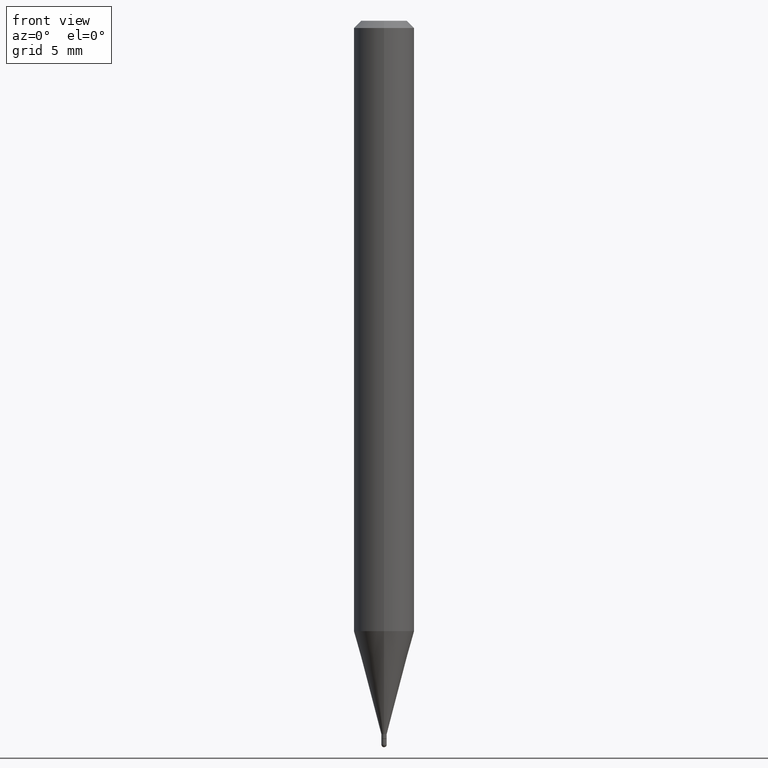
[diagram: clean part render]
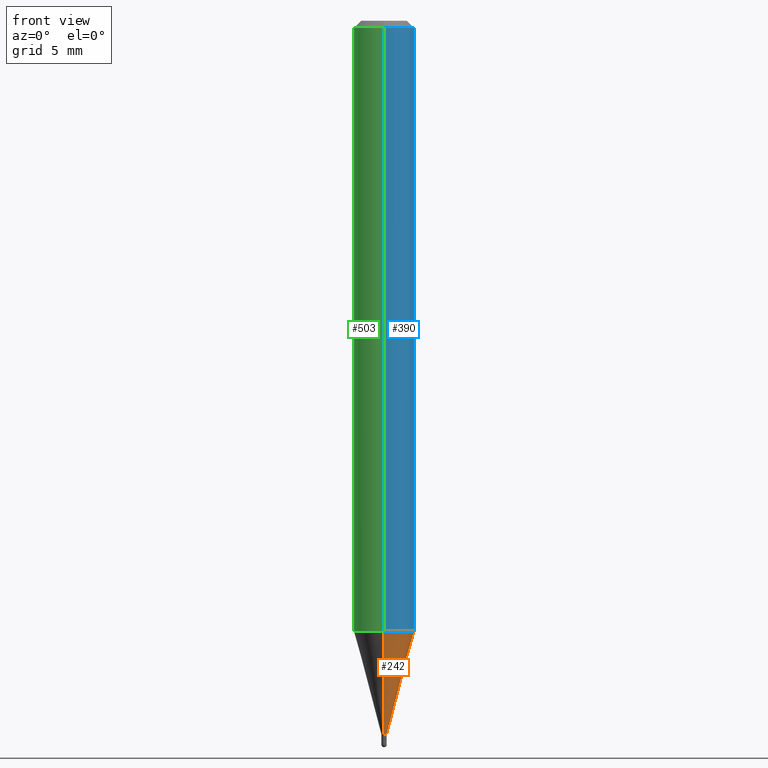
[diagram: same view with three faces highlighted in distinct colors, each labeled with its STEP entity id]
A machine part, front view with three faces highlighted in distinct colors.
Their STEP definitions:

[orange] entity #242 — the highlighted conical surface has half-angle 15 deg.
#4 = CARTESIAN_POINT ( 'NONE',  ( -4.364351673553608052E-16, -0.06250000000000439926, -1.260273103968574393 ) ) ;
#6 = VECTOR ( 'NONE', #164, 39.37007874015748143 ) ;
#18 = DIRECTION ( 'NONE',  ( -6.982962677686265922E-15, -1.000000000000000000, 0.000000000000000000 ) ) ;
#34 = VERTEX_POINT ( 'NONE', #400 ) ;
#53 = ORIENTED_EDGE ( 'NONE', *, *, #357, .T. ) ;
#56 = CARTESIAN_POINT ( 'NONE',  ( -3.840629472723789408E-17, -0.005500000000005065073, -1.473000000000000087 ) ) ;
#57 = AXIS2_PLACEMENT_3D ( 'NONE', #352, #268, #156 ) ;
#64 = EDGE_CURVE ( 'NONE', #433, #234, #138, .T. ) ;
#128 = EDGE_LOOP ( 'NONE', ( #248, #53, #286, #323 ) ) ;
#132 = CONICAL_SURFACE ( 'NONE', #221, 0.005499999999999922486, 0.2617993877991502960 ) ;
#137 = DIRECTION ( 'NONE',  ( 1.839019923739600315E-15, 0.2588190451025249583, 0.9659258262890670910 ) ) ;
#138 = CIRCLE ( 'NONE', #198, 0.005499999999999922486 ) ;
#142 = CARTESIAN_POINT ( 'NONE',  ( 3.907985046684097588E-17, 0.005499999999994779898, -1.473000000000000087 ) ) ;
#156 = DIRECTION ( 'NONE',  ( -6.982962677686265922E-15, -1.000000000000000000, 4.370956789862821150E-15 ) ) ;
#160 = VERTEX_POINT ( 'NONE', #4 ) ;
#164 = DIRECTION ( 'NONE',  ( -1.807323732225330139E-15, -0.2588190451025181860, 0.9659258262890689783 ) ) ;
#198 = AXIS2_PLACEMENT_3D ( 'NONE', #491, #310, #18 ) ;
#221 = AXIS2_PLACEMENT_3D ( 'NONE', #434, #428, #345 ) ;
#229 = CARTESIAN_POINT ( 'NONE',  ( 2.415845301584673113E-16, 0.005499999999994779898, -1.473000000000000087 ) ) ;
#234 = VERTEX_POINT ( 'NONE', #229 ) ;
#235 = CARTESIAN_POINT ( 'NONE',  ( -3.840629472723789408E-17, -0.005500000000005065073, -1.473000000000000087 ) ) ;
#242 = ADVANCED_FACE ( 'NONE', ( #311 ), #132, .T. ) ;
#248 = ORIENTED_EDGE ( 'NONE', *, *, #64, .T. ) ;
#268 = DIRECTION ( 'NONE',  ( -2.445481527053186331E-29, 3.491463121836071755E-15, 1.000000000000000000 ) ) ;
#286 = ORIENTED_EDGE ( 'NONE', *, *, #450, .F. ) ;
#307 = EDGE_CURVE ( 'NONE', #433, #160, #418, .T. ) ;
#310 = DIRECTION ( 'NONE',  ( -2.445481527053186331E-29, 3.491463121836071755E-15, 1.000000000000000000 ) ) ;
#311 = FACE_OUTER_BOUND ( 'NONE', #128, .T. ) ;
#323 = ORIENTED_EDGE ( 'NONE', *, *, #307, .F. ) ;
#345 = DIRECTION ( 'NONE',  ( -6.982962677686265922E-15, -1.000000000000000000, 0.000000000000000000 ) ) ;
#352 = CARTESIAN_POINT ( 'NONE',  ( 3.081974594797129006E-29, -4.400197065948155318E-15, -1.260273103968574615 ) ) ;
#357 = EDGE_CURVE ( 'NONE', #234, #34, #447, .T. ) ;
#400 = CARTESIAN_POINT ( 'NONE',  ( 4.440892098500932831E-16, 0.06249999999999558686, -1.260273103968574837 ) ) ;
#418 = LINE ( 'NONE', #235, #6 ) ;
#426 = VECTOR ( 'NONE', #137, 39.37007874015748143 ) ;
#428 = DIRECTION ( 'NONE',  ( -2.445481527053186331E-29, 3.491463121836071755E-15, 1.000000000000000000 ) ) ;
#433 = VERTEX_POINT ( 'NONE', #56 ) ;
#434 = CARTESIAN_POINT ( 'NONE',  ( 3.602194289349343960E-29, -5.142925178464533732E-15, -1.473000000000000087 ) ) ;
#447 = LINE ( 'NONE', #142, #426 ) ;
#450 = EDGE_CURVE ( 'NONE', #160, #34, #454, .T. ) ;
#454 = CIRCLE ( 'NONE', #57, 0.06250000000000000000 ) ;
#491 = CARTESIAN_POINT ( 'NONE',  ( 3.602194289349343960E-29, -5.142925178464533732E-15, -1.473000000000000087 ) ) ;

[blue] entity #390 — the highlighted cylindrical surface (edge-blend (fillet) strip) has radius 1.5875 mm, axis along (-0, 0, 1).
#4 = CARTESIAN_POINT ( 'NONE',  ( -4.364351673553608052E-16, -0.06250000000000439926, -1.260273103968574393 ) ) ;
#14 = CARTESIAN_POINT ( 'NONE',  ( -4.364351673553916201E-16, -0.06250000000000000000, 2.182164451147544847E-16 ) ) ;
#34 = VERTEX_POINT ( 'NONE', #400 ) ;
#39 = CARTESIAN_POINT ( 'NONE',  ( 4.440892098500625669E-16, 0.06250000000000000000, -2.182164451147544847E-16 ) ) ;
#40 = VECTOR ( 'NONE', #201, 39.37007874015748143 ) ;
#50 = EDGE_CURVE ( 'NONE', #276, #131, #54, .T. ) ;
#54 = CIRCLE ( 'NONE', #358, 0.06250000000000000000 ) ;
#57 = AXIS2_PLACEMENT_3D ( 'NONE', #352, #268, #156 ) ;
#63 = CARTESIAN_POINT ( 'NONE',  ( 4.440892098500935790E-16, 0.06249999999999995143, -0.01500000000000022669 ) ) ;
#94 = DIRECTION ( 'NONE',  ( -2.445481527053186331E-29, 3.491463121836071755E-15, 1.000000000000000000 ) ) ;
#124 = AXIS2_PLACEMENT_3D ( 'NONE', #330, #335, #411 ) ;
#131 = VERTEX_POINT ( 'NONE', #63 ) ;
#133 = EDGE_CURVE ( 'NONE', #160, #276, #499, .T. ) ;
#148 = VECTOR ( 'NONE', #94, 39.37007874015748143 ) ;
#156 = DIRECTION ( 'NONE',  ( -6.982962677686265922E-15, -1.000000000000000000, 4.370956789862821150E-15 ) ) ;
#160 = VERTEX_POINT ( 'NONE', #4 ) ;
#179 = FACE_OUTER_BOUND ( 'NONE', #367, .T. ) ;
#187 = DIRECTION ( 'NONE',  ( -6.982962677686265922E-15, -1.000000000000000000, 3.483106191921935554E-15 ) ) ;
#201 = DIRECTION ( 'NONE',  ( -2.445481527053186331E-29, 3.491463121836071755E-15, 1.000000000000000000 ) ) ;
#206 = CARTESIAN_POINT ( 'NONE',  ( -4.364351673553912750E-16, -0.06250000000000005551, -0.01499999999999979128 ) ) ;
#251 = ORIENTED_EDGE ( 'NONE', *, *, #133, .F. ) ;
#260 = CYLINDRICAL_SURFACE ( 'NONE', #124, 0.06250000000000000000 ) ;
#268 = DIRECTION ( 'NONE',  ( -2.445481527053186331E-29, 3.491463121836071755E-15, 1.000000000000000000 ) ) ;
#276 = VERTEX_POINT ( 'NONE', #206 ) ;
#289 = ORIENTED_EDGE ( 'NONE', *, *, #450, .T. ) ;
#309 = ORIENTED_EDGE ( 'NONE', *, *, #50, .F. ) ;
#319 = ORIENTED_EDGE ( 'NONE', *, *, #378, .T. ) ;
#330 = CARTESIAN_POINT ( 'NONE',  ( 0.000000000000000000, 0.000000000000000000, 0.000000000000000000 ) ) ;
#331 = LINE ( 'NONE', #39, #148 ) ;
#335 = DIRECTION ( 'NONE',  ( -2.445481527053186331E-29, 3.491463121836071755E-15, 1.000000000000000000 ) ) ;
#352 = CARTESIAN_POINT ( 'NONE',  ( 3.081974594797129006E-29, -4.400197065948155318E-15, -1.260273103968574615 ) ) ;
#358 = AXIS2_PLACEMENT_3D ( 'NONE', #478, #436, #187 ) ;
#367 = EDGE_LOOP ( 'NONE', ( #289, #319, #309, #251 ) ) ;
#378 = EDGE_CURVE ( 'NONE', #34, #131, #331, .T. ) ;
#390 = ADVANCED_FACE ( 'NONE', ( #179 ), #260, .T. ) ;
#400 = CARTESIAN_POINT ( 'NONE',  ( 4.440892098500932831E-16, 0.06249999999999558686, -1.260273103968574837 ) ) ;
#411 = DIRECTION ( 'NONE',  ( -6.982962677686265922E-15, -1.000000000000000000, 3.491463121836071755E-15 ) ) ;
#436 = DIRECTION ( 'NONE',  ( -2.445481527053186331E-29, 3.491463121836071755E-15, 1.000000000000000000 ) ) ;
#450 = EDGE_CURVE ( 'NONE', #160, #34, #454, .T. ) ;
#454 = CIRCLE ( 'NONE', #57, 0.06250000000000000000 ) ;
#478 = CARTESIAN_POINT ( 'NONE',  ( 3.668222290579782019E-31, -5.237194682754110664E-17, -0.01500000000000000812 ) ) ;
#499 = LINE ( 'NONE', #14, #40 ) ;

[green] entity #503 — the highlighted cylindrical surface (edge-blend (fillet) strip) has radius 1.5875 mm, axis along (-0, 0, 1).
#4 = CARTESIAN_POINT ( 'NONE',  ( -4.364351673553608052E-16, -0.06250000000000439926, -1.260273103968574393 ) ) ;
#14 = CARTESIAN_POINT ( 'NONE',  ( -4.364351673553916201E-16, -0.06250000000000000000, 2.182164451147544847E-16 ) ) ;
#15 = DIRECTION ( 'NONE',  ( -6.982962677686265922E-15, -1.000000000000000000, 3.483106191921935554E-15 ) ) ;
#34 = VERTEX_POINT ( 'NONE', #400 ) ;
#38 = CARTESIAN_POINT ( 'NONE',  ( 0.000000000000000000, 0.000000000000000000, 0.000000000000000000 ) ) ;
#39 = CARTESIAN_POINT ( 'NONE',  ( 4.440892098500625669E-16, 0.06250000000000000000, -2.182164451147544847E-16 ) ) ;
#40 = VECTOR ( 'NONE', #201, 39.37007874015748143 ) ;
#48 = DIRECTION ( 'NONE',  ( -2.445481527053186331E-29, 3.491463121836071755E-15, 1.000000000000000000 ) ) ;
#63 = CARTESIAN_POINT ( 'NONE',  ( 4.440892098500935790E-16, 0.06249999999999995143, -0.01500000000000022669 ) ) ;
#94 = DIRECTION ( 'NONE',  ( -2.445481527053186331E-29, 3.491463121836071755E-15, 1.000000000000000000 ) ) ;
#126 = ORIENTED_EDGE ( 'NONE', *, *, #432, .F. ) ;
#130 = FACE_OUTER_BOUND ( 'NONE', #341, .T. ) ;
#131 = VERTEX_POINT ( 'NONE', #63 ) ;
#133 = EDGE_CURVE ( 'NONE', #160, #276, #499, .T. ) ;
#148 = VECTOR ( 'NONE', #94, 39.37007874015748143 ) ;
#160 = VERTEX_POINT ( 'NONE', #4 ) ;
#201 = DIRECTION ( 'NONE',  ( -2.445481527053186331E-29, 3.491463121836071755E-15, 1.000000000000000000 ) ) ;
#206 = CARTESIAN_POINT ( 'NONE',  ( -4.364351673553912750E-16, -0.06250000000000005551, -0.01499999999999979128 ) ) ;
#237 = CARTESIAN_POINT ( 'NONE',  ( 3.081974594797129006E-29, -4.400197065948155318E-15, -1.260273103968574615 ) ) ;
#247 = AXIS2_PLACEMENT_3D ( 'NONE', #237, #391, #500 ) ;
#256 = CIRCLE ( 'NONE', #410, 0.06250000000000000000 ) ;
#261 = EDGE_CURVE ( 'NONE', #34, #160, #306, .T. ) ;
#276 = VERTEX_POINT ( 'NONE', #206 ) ;
#281 = ORIENTED_EDGE ( 'NONE', *, *, #261, .T. ) ;
#306 = CIRCLE ( 'NONE', #247, 0.06250000000000000000 ) ;
#331 = LINE ( 'NONE', #39, #148 ) ;
#341 = EDGE_LOOP ( 'NONE', ( #475, #281, #501, #126 ) ) ;
#348 = CARTESIAN_POINT ( 'NONE',  ( 3.668222290579782019E-31, -5.237194682754110664E-17, -0.01500000000000000812 ) ) ;
#378 = EDGE_CURVE ( 'NONE', #34, #131, #331, .T. ) ;
#381 = AXIS2_PLACEMENT_3D ( 'NONE', #38, #48, #443 ) ;
#391 = DIRECTION ( 'NONE',  ( -2.445481527053186331E-29, 3.491463121836071755E-15, 1.000000000000000000 ) ) ;
#400 = CARTESIAN_POINT ( 'NONE',  ( 4.440892098500932831E-16, 0.06249999999999558686, -1.260273103968574837 ) ) ;
#409 = CYLINDRICAL_SURFACE ( 'NONE', #381, 0.06250000000000000000 ) ;
#410 = AXIS2_PLACEMENT_3D ( 'NONE', #348, #437, #15 ) ;
#432 = EDGE_CURVE ( 'NONE', #131, #276, #256, .T. ) ;
#437 = DIRECTION ( 'NONE',  ( -2.445481527053186331E-29, 3.491463121836071755E-15, 1.000000000000000000 ) ) ;
#443 = DIRECTION ( 'NONE',  ( -6.982962677686265922E-15, -1.000000000000000000, 3.491463121836071755E-15 ) ) ;
#475 = ORIENTED_EDGE ( 'NONE', *, *, #378, .F. ) ;
#499 = LINE ( 'NONE', #14, #40 ) ;
#500 = DIRECTION ( 'NONE',  ( -6.982962677686265922E-15, -1.000000000000000000, 4.370956789862821150E-15 ) ) ;
#501 = ORIENTED_EDGE ( 'NONE', *, *, #133, .T. ) ;
#503 = ADVANCED_FACE ( 'NONE', ( #130 ), #409, .T. ) ;